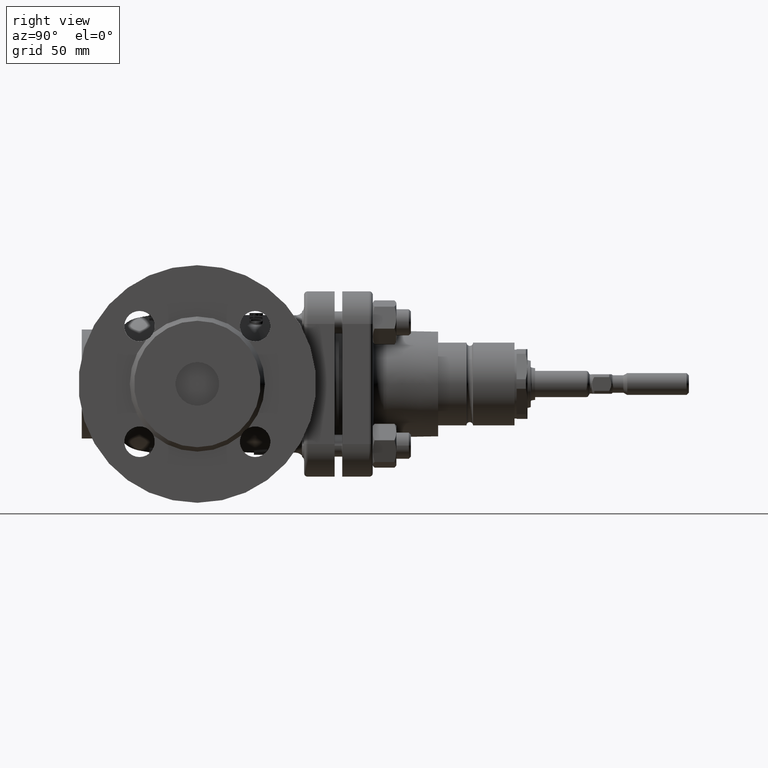
[diagram: clean part render]
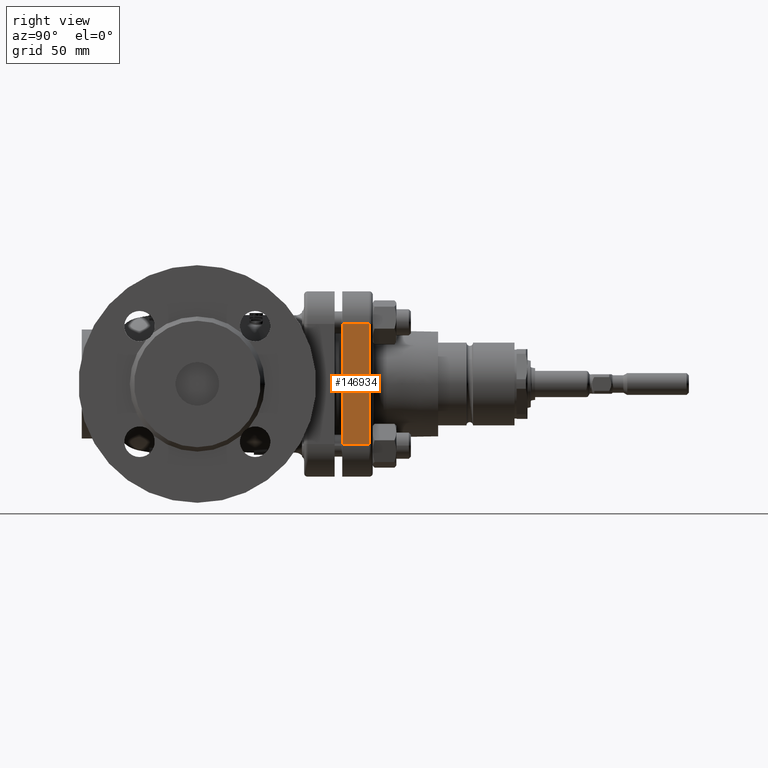
[diagram: same view with one face highlighted and labeled with its STEP entity id]
A machine part, right view. The second image highlights one B-rep face of the part: STEP entity #146934.
In plain terms, the highlighted planar face has unit normal (1, 0, 0).
Its self-contained STEP definition (entity closure, byte-faithful):
#5760 = DIRECTION ( 'NONE',  ( 0.0000000000000000000, -1.000000000000000000, 0.0000000000000000000 ) ) ;
#7903 = DIRECTION ( 'NONE',  ( -0.0000000000000000000, 1.000000000000000000, -0.0000000000000000000 ) ) ;
#10002 = DIRECTION ( 'NONE',  ( -3.578836573497563300E-015, -0.0000000000000000000, 1.000000000000000000 ) ) ;
#15444 = CARTESIAN_POINT ( 'NONE',  ( 42.49999999999990100, 78.89999999999997700, 27.50000000000016000 ) ) ;
#17045 = CARTESIAN_POINT ( 'NONE',  ( 42.49999999999990100, 66.49999999999998600, 27.50000000000016000 ) ) ;
#18394 = CARTESIAN_POINT ( 'NONE',  ( 42.49999999999985100, 200.7081528017131100, 42.50000000000015600 ) ) ;
#29036 = CARTESIAN_POINT ( 'NONE',  ( 42.49999999999990100, 200.7081528017131100, 27.50000000000016000 ) ) ;
#29668 = EDGE_CURVE ( 'NONE', #131541, #77535, #78710, .T. ) ;
#31176 = CARTESIAN_POINT ( 'NONE',  ( 42.50000000000009900, 200.7081528017131100, -27.49999999999984700 ) ) ;
#41160 = PLANE ( 'NONE',  #42377 ) ;
#41665 = DIRECTION ( 'NONE',  ( 1.000000000000000000, 0.0000000000000000000, 3.578836573497563300E-015 ) ) ;
#42377 = AXIS2_PLACEMENT_3D ( 'NONE', #18394, #41665, #122612 ) ;
#42959 = ORIENTED_EDGE ( 'NONE', *, *, #29668, .F. ) ;
#47871 = VECTOR ( 'NONE', #130831, 1000.000000000000000 ) ;
#49990 = ORIENTED_EDGE ( 'NONE', *, *, #142265, .T. ) ;
#54485 = LINE ( 'NONE', #29036, #143239 ) ;
#61613 = ORIENTED_EDGE ( 'NONE', *, *, #73108, .T. ) ;
#67718 = CARTESIAN_POINT ( 'NONE',  ( 42.49999999999990100, 78.89999999999997700, 27.50000000000016000 ) ) ;
#73108 = EDGE_CURVE ( 'NONE', #135378, #77535, #54485, .T. ) ;
#73711 = CARTESIAN_POINT ( 'NONE',  ( 42.49999999999985100, 66.49999999999998600, 42.50000000000015600 ) ) ;
#75691 = EDGE_LOOP ( 'NONE', ( #49990, #85762, #61613, #42959 ) ) ;
#77535 = VERTEX_POINT ( 'NONE', #17045 ) ;
#78710 = LINE ( 'NONE', #73711, #47871 ) ;
#82848 = EDGE_CURVE ( 'NONE', #99157, #135378, #86757, .T. ) ;
#85762 = ORIENTED_EDGE ( 'NONE', *, *, #82848, .T. ) ;
#86757 = LINE ( 'NONE', #67718, #148328 ) ;
#99157 = VERTEX_POINT ( 'NONE', #116302 ) ;
#109957 = CARTESIAN_POINT ( 'NONE',  ( 42.50000000000009900, 66.49999999999998600, -27.49999999999984700 ) ) ;
#115234 = LINE ( 'NONE', #31176, #142520 ) ;
#116302 = CARTESIAN_POINT ( 'NONE',  ( 42.50000000000009900, 78.89999999999997700, -27.49999999999984700 ) ) ;
#122612 = DIRECTION ( 'NONE',  ( -3.578836573497563300E-015, 0.0000000000000000000, 1.000000000000000000 ) ) ;
#130831 = DIRECTION ( 'NONE',  ( -3.578836573497563300E-015, 0.0000000000000000000, 1.000000000000000000 ) ) ;
#131541 = VERTEX_POINT ( 'NONE', #109957 ) ;
#135378 = VERTEX_POINT ( 'NONE', #15444 ) ;
#142265 = EDGE_CURVE ( 'NONE', #131541, #99157, #115234, .T. ) ;
#142520 = VECTOR ( 'NONE', #7903, 1000.000000000000000 ) ;
#143239 = VECTOR ( 'NONE', #5760, 1000.000000000000000 ) ;
#146020 = FACE_OUTER_BOUND ( 'NONE', #75691, .T. ) ;
#146934 = ADVANCED_FACE ( 'NONE', ( #146020 ), #41160, .T. ) ;
#148328 = VECTOR ( 'NONE', #10002, 1000.000000000000000 ) ;